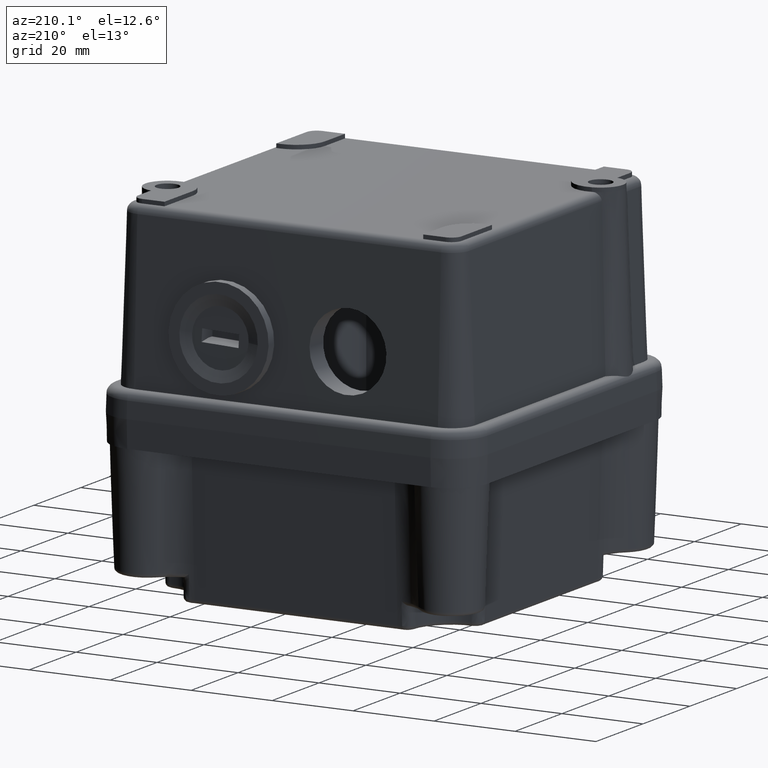
[diagram: clean part render]
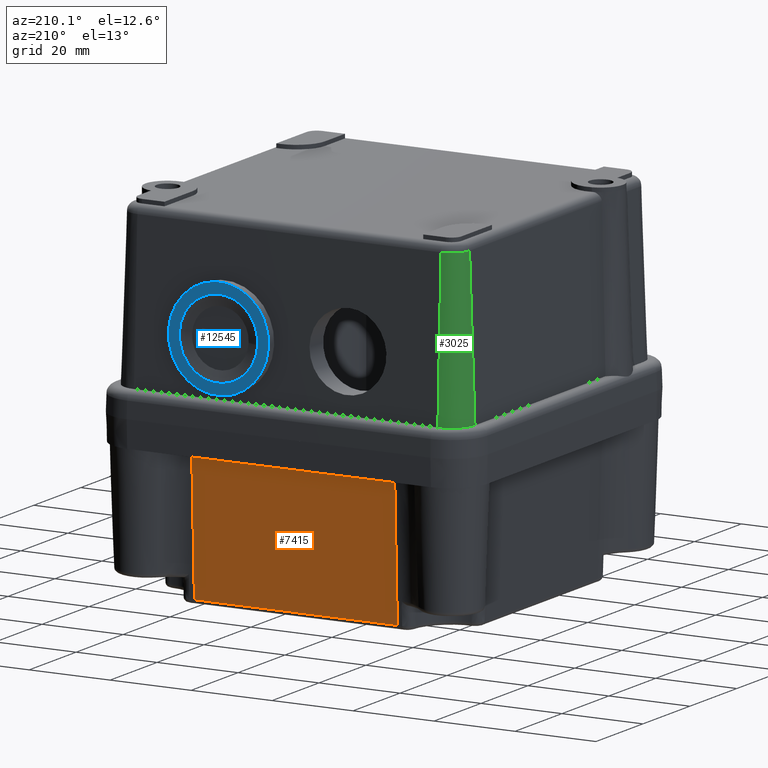
[diagram: same view with three faces highlighted in distinct colors, each labeled with its STEP entity id]
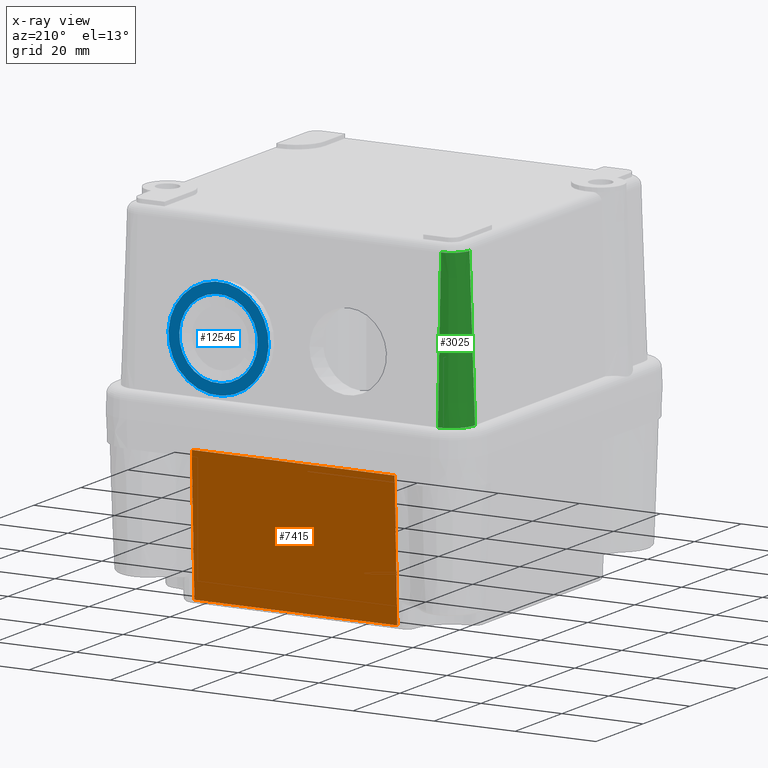
[diagram: x-ray of the same camera — body ghosted, the three highlighted faces saturated]
A machine part, auxiliary view with three faces highlighted in distinct colors.
The next image is the same camera in x-ray (body ghosted, the three faces saturated) — at least one of them is partly hidden behind the body in this view.
Their STEP definitions:

[orange] entity #7415 — the highlighted planar face has unit normal (-0, 0.9994, -0.0349).
#3678=CARTESIAN_POINT('',(62.842565090986717,7.475120117470545,6.499999999999986));
#3679=VERTEX_POINT('',#3678);
#3687=CARTESIAN_POINT('',(62.842565090986717,6.321516006963144,39.534899496702501));
#3688=VERTEX_POINT('',#3687);
#3689=CARTESIAN_POINT('',(62.842565090986717,6.321516006963144,39.534899496702501));
#3690=DIRECTION('',(0.0,0.034899496702501,-0.999390827019096));
#3691=VECTOR('',#3690,33.055035731352881);
#3692=LINE('',#3689,#3691);
#3693=EDGE_CURVE('',#3688,#3679,#3692,.T.);
#4383=CARTESIAN_POINT('',(12.723991961410812,6.321516006963142,39.534899496702501));
#4384=VERTEX_POINT('',#4383);
#4392=CARTESIAN_POINT('',(12.723991961410812,7.475120117470460,6.499999999999986));
#4393=VERTEX_POINT('',#4392);
#4394=CARTESIAN_POINT('',(12.723991961410812,6.321516006963142,39.534899496702501));
#4395=DIRECTION('',(0.0,0.034899496702498,-0.999390827019096));
#4396=VECTOR('',#4395,33.055035731352881);
#4397=LINE('',#4394,#4396);
#4398=EDGE_CURVE('',#4384,#4393,#4397,.T.);
#5209=CARTESIAN_POINT('',(62.842565090986717,6.321516006963144,39.534899496702501));
#5210=DIRECTION('',(-1.0,0.0,0.0));
#5211=VECTOR('',#5210,50.118573129575907);
#5212=LINE('',#5209,#5211);
#5213=EDGE_CURVE('',#3688,#4384,#5212,.T.);
#7399=CARTESIAN_POINT('',(62.842565090986717,6.287813954751123,40.500000000000000));
#7400=DIRECTION('',(0.0,0.999390827019096,0.034899496702501));
#7401=DIRECTION('',(1.0,0.0,0.0));
#7402=AXIS2_PLACEMENT_3D('',#7399,#7400,#7401);
#7403=PLANE('',#7402);
#7404=ORIENTED_EDGE('',*,*,#5213,.F.);
#7405=ORIENTED_EDGE('',*,*,#3693,.T.);
#7406=CARTESIAN_POINT('',(62.842565090986717,7.475120117470545,6.499999999999986));
#7407=DIRECTION('',(-1.0,0.0,0.0));
#7408=VECTOR('',#7407,50.118573129575907);
#7409=LINE('',#7406,#7408);
#7410=EDGE_CURVE('',#3679,#4393,#7409,.T.);
#7411=ORIENTED_EDGE('',*,*,#7410,.T.);
#7412=ORIENTED_EDGE('',*,*,#4398,.F.);
#7413=EDGE_LOOP('',(#7404,#7405,#7411,#7412));
#7414=FACE_OUTER_BOUND('',#7413,.T.);
#7415=ADVANCED_FACE('',(#7414),#7403,.T.);

[blue] entity #12545 — the highlighted planar face has unit normal (-0, -0.9994, -0.0349).
#12347=CARTESIAN_POINT('',(8.514351809372672,-2.287778354852909,2.400000000000000));
#12348=VERTEX_POINT('',#12347);
#12349=CARTESIAN_POINT('',(-1.173991553848727,-2.287778354852908,2.400000000000000));
#12350=DIRECTION('',(0.0,0.0,-1.0));
#12351=DIRECTION('',(-1.0,0.0,0.0));
#12352=AXIS2_PLACEMENT_3D('',#12349,#12350,#12351);
#12353=CIRCLE('',#12352,9.688343363221399);
#12354=EDGE_CURVE('',#12348,#12348,#12353,.T.);
#12519=CARTESIAN_POINT('',(11.201008446151272,-2.287778354852907,2.400000000000000));
#12520=VERTEX_POINT('',#12519);
#12521=CARTESIAN_POINT('',(-1.173991553848727,-2.287778354852908,2.400000000000000));
#12522=DIRECTION('',(0.0,0.0,-1.0));
#12523=DIRECTION('',(-1.0,0.0,0.0));
#12524=AXIS2_PLACEMENT_3D('',#12521,#12522,#12523);
#12525=CIRCLE('',#12524,12.375000000000000);
#12526=EDGE_CURVE('',#12520,#12520,#12525,.T.);
#12534=CARTESIAN_POINT('',(-1.173991553848727,-2.287778354852908,2.400000000000000));
#12535=DIRECTION('',(0.0,0.0,-1.0));
#12536=DIRECTION('',(-1.0,0.0,0.0));
#12537=AXIS2_PLACEMENT_3D('',#12534,#12535,#12536);
#12538=PLANE('',#12537);
#12539=ORIENTED_EDGE('',*,*,#12526,.F.);
#12540=EDGE_LOOP('',(#12539));
#12541=FACE_OUTER_BOUND('',#12540,.T.);
#12542=ORIENTED_EDGE('',*,*,#12354,.T.);
#12543=EDGE_LOOP('',(#12542));
#12544=FACE_BOUND('',#12543,.T.);
#12545=ADVANCED_FACE('',(#12541,#12544),#12538,.F.);

[green] entity #3025 — the highlighted conical surface has half-angle 2 deg.
#2451=CARTESIAN_POINT('',(-10.575957144919217,54.099587009436490,44.069798993405001));
#2452=VERTEX_POINT('',#2451);
#2502=CARTESIAN_POINT('',(-6.114908437115638,58.560635717240061,44.069798993405001));
#2503=VERTEX_POINT('',#2502);
#2511=CARTESIAN_POINT('',(-6.114908437115638,54.099587009436490,44.069798993405001));
#2512=DIRECTION('',(0.0,0.0,1.0));
#2513=DIRECTION('',(-0.707106781186547,0.707106781186548,0.0));
#2514=AXIS2_PLACEMENT_3D('',#2511,#2512,#2513);
#2515=CIRCLE('',#2514,4.461048707803609);
#2516=EDGE_CURVE('',#2503,#2452,#2515,.T.);
#2935=CARTESIAN_POINT('',(-11.905383820165083,54.099587009436490,6.000000000000014));
#2936=VERTEX_POINT('',#2935);
#2937=CARTESIAN_POINT('',(-10.575957144919217,54.099587009436490,44.069798993405001));
#2938=DIRECTION('',(-0.034899496702501,0.0,-0.999390827019096));
#2939=VECTOR('',#2938,38.093004222338706);
#2940=LINE('',#2937,#2939);
#2941=EDGE_CURVE('',#2452,#2936,#2940,.T.);
#2985=CARTESIAN_POINT('',(-6.114908437115638,59.890062392485966,6.000000000000014));
#2986=VERTEX_POINT('',#2985);
#2993=CARTESIAN_POINT('',(-6.114908437115638,58.560635717240061,44.069798993405001));
#2994=DIRECTION('',(0.0,0.034899496702502,-0.999390827019096));
#2995=VECTOR('',#2994,38.093004222338713);
#2996=LINE('',#2993,#2995);
#2997=EDGE_CURVE('',#2503,#2986,#2996,.T.);
#3008=CARTESIAN_POINT('',(-6.114908437115638,54.099587009436490,46.000000000000007));
#3009=DIRECTION('',(0.0,0.0,-1.0));
#3010=DIRECTION('',(0.0,1.0,0.0));
#3011=AXIS2_PLACEMENT_3D('',#3008,#3009,#3010);
#3012=CONICAL_SURFACE('',#3011,4.393644603379566,2.0);
#3013=ORIENTED_EDGE('',*,*,#2516,.F.);
#3014=ORIENTED_EDGE('',*,*,#2997,.T.);
#3015=CARTESIAN_POINT('',(-6.114908437115638,54.099587009436490,6.000000000000005));
#3016=DIRECTION('',(0.0,0.0,1.0));
#3017=DIRECTION('',(0.0,1.0,0.0));
#3018=AXIS2_PLACEMENT_3D('',#3015,#3016,#3017);
#3019=CIRCLE('',#3018,5.790475383049476);
#3020=EDGE_CURVE('',#2986,#2936,#3019,.T.);
#3021=ORIENTED_EDGE('',*,*,#3020,.T.);
#3022=ORIENTED_EDGE('',*,*,#2941,.F.);
#3023=EDGE_LOOP('',(#3013,#3014,#3021,#3022));
#3024=FACE_OUTER_BOUND('',#3023,.T.);
#3025=ADVANCED_FACE('',(#3024),#3012,.T.);